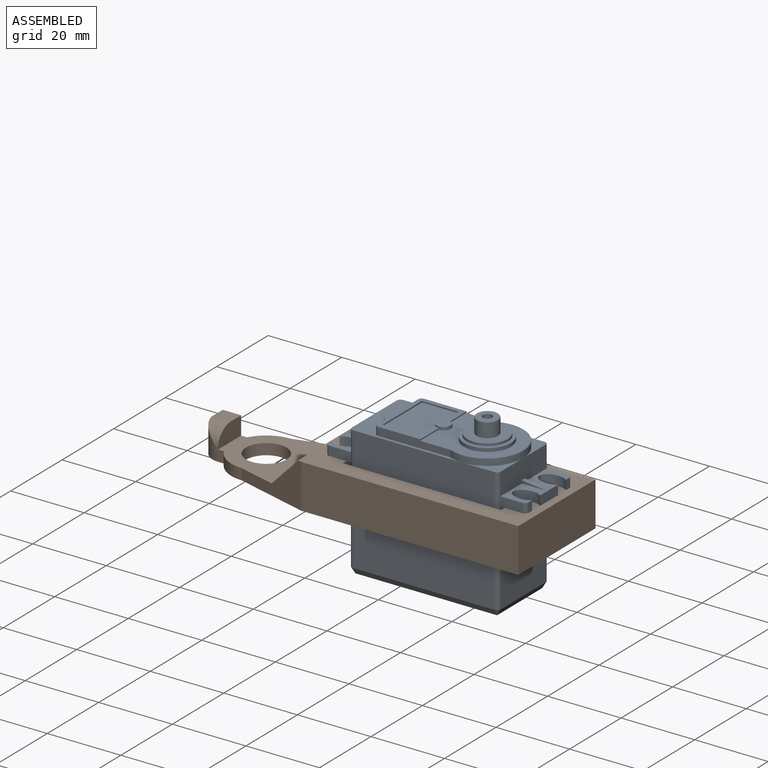
[diagram: assembled view]
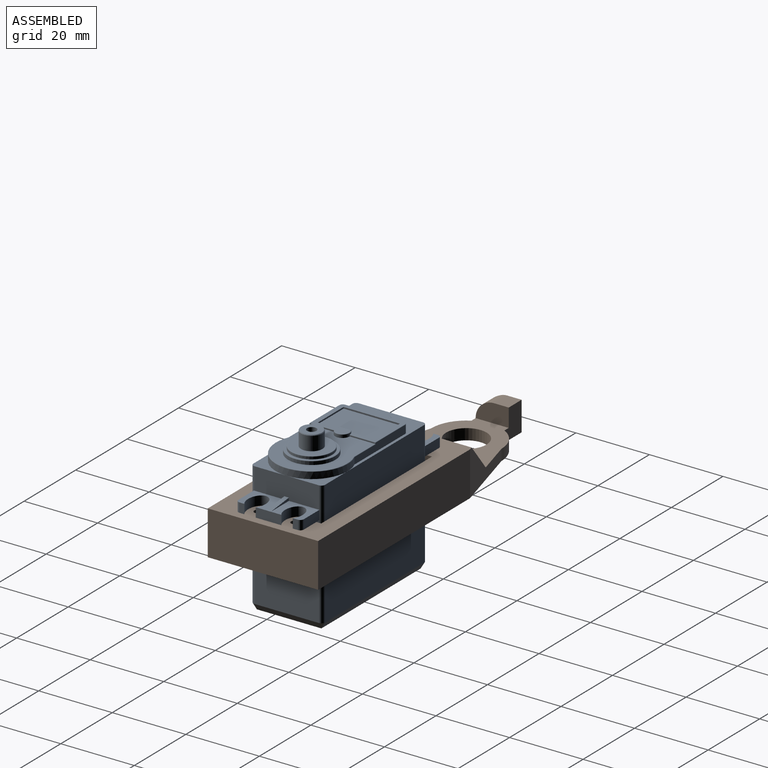
[diagram: assembled view, second angle]
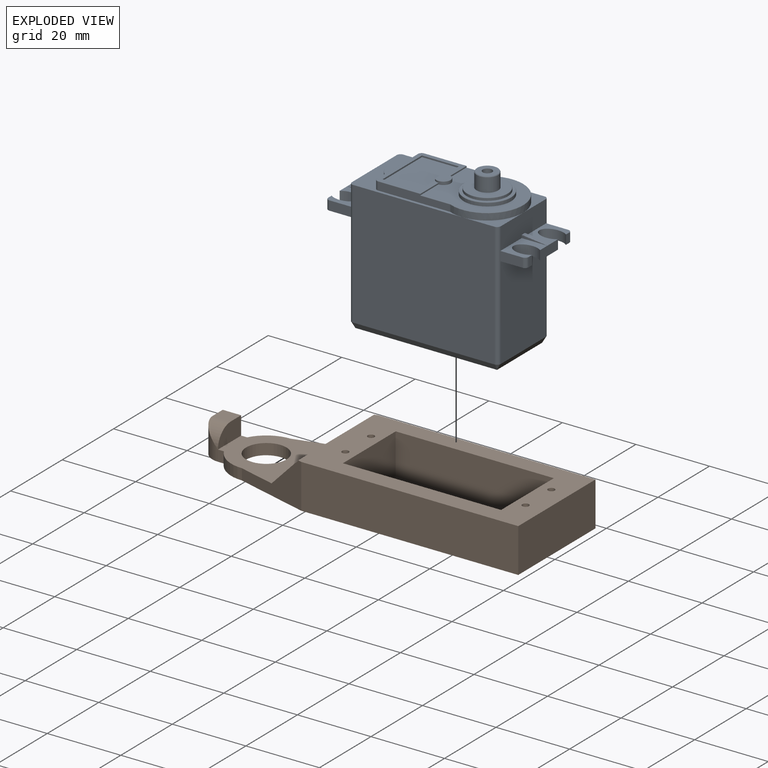
[diagram: exploded view]
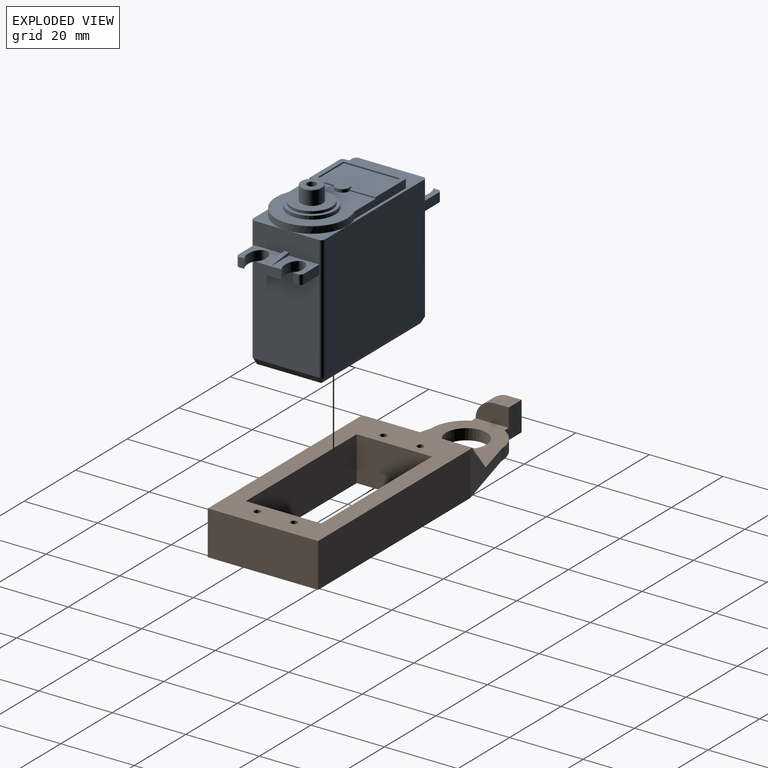
[diagram: exploded view, second angle]
ASSEMBLY  parts=2 mates=2
PART A: 94 faces, bbox 54.5x21.1x43.2 mm
  f0: plane 25.3x17.5mm, normal (1,0,0), area 442.8mm2, adj f13,f79,f80,f89
  f1: plane 25.3x17.5mm, normal (-1,0,0), area 442.8mm2, adj f5,f77,f78,f88
  f2: plane 17.75x12.3mm, normal (0,0,1), area 60.9mm2, adj f37,f38,f39,f40,f43,f66,f67,f68
  f3: plane 7x1.25mm, normal (0.11,0,0.99), area 8.8mm2, adj f6,f14,f56,f60
  f4: plane 8.28x7.01mm, normal (0,0,1), area 33.4mm2, adj f6,f7,f8,f9,f14,f56,f79,f82
  f5: plane 17.8x7.01mm, normal (0,0,-1), area 75.6mm2, adj f1,f18,f19,f20,f21,f22,f23,f24
  f6: plane 6.95x2.54mm, normal (1,0,0), area 17.6mm2, adj f3,f4,f7,f12,f13,f59
  f7: extruded ~6.15x4.74mm, area 38mm2, adj f4,f6,f8,f13
  f8: plane 2.54x1.32mm, normal (1,0,0), area 3.4mm2, adj f4,f7,f13,f82
  f9: plane 6.01x2.54mm, normal (0,1,0), area 15.3mm2, adj f4,f13,f79,f82
  f10: plane 6.01x2.54mm, normal (0,-1,0), area 15.3mm2, adj f13,f59,f80,f81
  f11: plane 2.54x1.32mm, normal (1,0,0), area 3.4mm2, adj f12,f13,f59,f81
  f12: extruded ~6.15x4.74mm, area 38mm2, adj f6,f11,f13,f59
  f13: plane 17.8x7.01mm, normal (0,0,-1), area 75.6mm2, adj f0,f6,f7,f8,f9,f10,f11,f12
  f14: plane 17.5x6mm, normal (1,0,0), area 104mm2, adj f3,f4,f16,f44,f56,f59,f60,f79
  f15: plane 38.5x33.84mm, normal (0,1,0), area 1302.8mm2, adj f16,f28,f78,f79,f85
  f16: plane 9.75x9.75mm, normal (0,0,1), area 20.2mm2, adj f14,f15,f17,f79
  f17: cylinder r=9.75mm len=19.5mm, axis (0,0,-1), area 69.2mm2, adj f16,f28,f31,f32,f44,f64
  f18: plane 6.95x2.54mm, normal (-1,0,0), area 17.6mm2, adj f5,f19,f24,f25,f54,f57
  f19: extruded ~6.15x4.74mm, area 38mm2, adj f5,f18,f20,f57
  f20: plane 2.54x1.32mm, normal (-1,0,0), area 3.4mm2, adj f5,f19,f57,f84
  f21: plane 6.01x2.54mm, normal (0,-1,0), area 15.3mm2, adj f5,f57,f77,f84
  f22: plane 6.01x2.54mm, normal (0,1,0), area 15.3mm2, adj f5,f25,f78,f83
  f23: plane 2.54x1.32mm, normal (-1,0,0), area 3.4mm2, adj f5,f24,f25,f83
  f24: extruded ~6.15x4.74mm, area 38mm2, adj f5,f18,f23,f25
  f25: plane 8.28x7.01mm, normal (0,0,1), area 33.4mm2, adj f18,f22,f23,f24,f26,f55,f78,f83
  f26: plane 17.5x6mm, normal (-1,0,0), area 104mm2, adj f25,f28,f54,f55,f57,f58,f77,f78
  f27: plane 38.5x33.84mm, normal (0,-1,0), area 1302.8mm2, adj f28,f44,f77,f80,f92
  f28: plane 30.75x19.5mm, normal (0,0,1), area 140.5mm2, adj f15,f17,f26,f27,f29,f31,f32,f35
  f29: cylinder r=5.6mm len=9.3mm, axis (0,0,-1), area 19.8mm2, adj f28,f35,f72
  f30: plane 9.06x2.38mm, normal (0,0,1), area 15.2mm2, adj f35,f72
  f31: plane 19.64x2.2mm, normal (0,-1,0), area 40mm2, adj f17,f28,f36,f63,f69,f73
  f32: plane 19.64x2.2mm, normal (0,1,0), area 40mm2, adj f17,f28,f34,f65,f67,f75
  f33: plane 21.6x19.3mm, normal (0,0,1), area 227.3mm2, adj f34,f36,f43,f45,f63,f64,f65
  f34: plane 7.03x0.4mm, normal (1,0,0), area 2.1mm2, adj f32,f33,f43,f65,f66
  f35: plane 15.95x2.2mm, normal (-1,0,0), area 17.4mm2, adj f28,f29,f30,f68,f72,f73,f75
  f36: plane 7.03x0.4mm, normal (1,0,0), area 2.1mm2, adj f31,f33,f43,f63,f70
  f37: plane 15.3x0.9mm, normal (-1,0,0), area 7.6mm2, adj f2,f38,f40,f41,f42,f43,f71
  f38: plane 10x0.4mm, normal (0,1,0), area 4mm2, adj f2,f37,f39,f41
  f39: plane 15.3x0.4mm, normal (1,0,0), area 6.1mm2, adj f2,f38,f40,f41
  f40: plane 10x0.4mm, normal (0,-1,0), area 4mm2, adj f2,f37,f39,f41
  f41: plane 15.3x10mm, normal (0,0,1), area 153mm2, adj f37,f38,f39,f40
  f42: plane 3.7x3.1mm, normal (0,0,1), area 9.6mm2, adj f37,f71
  f43: cylinder r=1.95mm len=3.9mm, axis (0,0,-1), area 6mm2, adj f2,f33,f34,f36,f37,f66,f70,f71
  f44: plane 9.75x9.75mm, normal (0,0,1), area 20.2mm2, adj f14,f17,f27,f80
  f45: cylinder r=6.41mm len=12.82mm, axis (0,0,-1), area 36.2mm2, adj f33,f62
  f46: plane 12.62x12.62mm, normal (0,0,1), area 28mm2, adj f47,f62
  f47: cylinder r=5.56mm len=11.12mm, axis (0,0,-1), area 22.7mm2, adj f46,f61
  f48: plane 10.92x10.92mm, normal (0,0,1), area 66.8mm2, adj f50,f61
  f49: cylinder r=1.27mm len=4mm, axis (0,0,-1), area 31.9mm2, adj f51,f53
  f50: cylinder r=2.93mm len=5.85mm, axis (0,0,-1), area 69.8mm2, adj f48,f93
  f51: plane 5.62x5.62mm, normal (0,0,1), area 19.7mm2, adj f49,f93
  f52: plane 38.54x17.54mm, normal (0,0,-1), area 675.8mm2, adj f85,f86,f87,f88,f89,f90,f91,f92
  f53: plane 2.54x2.54mm, normal (0,0,1), area 5.1mm2, adj f49
  f54: plane 7x1.25mm, normal (-0.11,0,0.99), area 8.8mm2, adj f18,f26,f55,f58
  f55: plane 7x0.8mm, normal (0,1,0), area 2.8mm2, adj f25,f26,f54
  f56: plane 7x0.8mm, normal (0,1,0), area 2.8mm2, adj f3,f4,f14
  f57: plane 8.28x7.01mm, normal (0,0,1), area 33.4mm2, adj f18,f19,f20,f21,f26,f58,f77,f84
  f58: plane 7x0.8mm, normal (0,-1,0), area 2.8mm2, adj f26,f54,f57
  f59: plane 8.28x7.01mm, normal (0,0,1), area 33.4mm2, adj f6,f10,f11,f12,f14,f60,f80,f81
  f60: plane 7x0.8mm, normal (0,-1,0), area 2.8mm2, adj f3,f14,f59
  f61: torus R=5.46mm, axis (0,0,1), area 5.5mm2, adj f47,f48
  f62: torus R=6.31mm, axis (0,0,1), area 6.3mm2, adj f45,f46
  f63: cylinder r=0.1mm len=8.16mm, axis (-1,0,0), area 1.3mm2, adj f31,f33,f36,f64
  f64: torus R=9.65mm, axis (0,0,1), area 6mm2, adj f17,f33,f63,f65
  f65: cylinder r=0.1mm len=8.16mm, axis (1,0,0), area 1.3mm2, adj f32,f33,f34,f64
  f66: cylinder r=0.1mm len=7.03mm, axis (0,-1,0), area 1.1mm2, adj f2,f34,f43,f67
  f67: cylinder r=0.1mm len=11.5mm, axis (1,0,0), area 1.8mm2, adj f2,f32,f66,f76
  f68: cylinder r=0.1mm len=15.95mm, axis (0,1,0), area 2.5mm2, adj f2,f35,f74,f76
  f69: cylinder r=0.1mm len=11.5mm, axis (-1,0,0), area 1.8mm2, adj f2,f31,f70,f74
  f70: cylinder r=0.1mm len=7.03mm, axis (0,-1,0), area 1.1mm2, adj f2,f36,f43,f69
  f71: torus R=1.85mm, axis (0,0,1), area 1.4mm2, adj f37,f42,f43
  f72: torus R=5.5mm, axis (0,0,1), area 1.7mm2, adj f29,f30,f35
  f73: cylinder r=1mm len=2.2mm, axis (0,0,-1), area 3.5mm2, adj f28,f31,f35,f74
  f74: torus R=0.9mm, axis (0,0,1), area 0.2mm2, adj f2,f68,f69,f73
  f75: cylinder r=1mm len=2.2mm, axis (0,0,1), area 3.5mm2, adj f28,f32,f35,f76
  f76: torus R=0.9mm, axis (0,0,1), area 0.2mm2, adj f2,f67,f68,f75
  f77: cylinder r=1mm len=33.84mm, axis (0,0,1), area 52.8mm2, adj f1,f5,f21,f26,f27,f28,f57,f90
  f78: cylinder r=1mm len=33.84mm, axis (0,0,-1), area 52.8mm2, adj f1,f5,f15,f22,f25,f26,f28,f86
  f79: cylinder r=1mm len=33.84mm, axis (0,0,1), area 52.8mm2, adj f0,f4,f9,f13,f14,f15,f16,f87
  f80: cylinder r=1mm len=33.84mm, axis (0,0,-1), area 52.8mm2, adj f0,f10,f13,f14,f27,f44,f59,f91
  f81: cylinder r=1mm len=2.54mm, axis (0,0,-1), area 4mm2, adj f10,f11,f13,f59
  f82: cylinder r=1mm len=2.54mm, axis (0,0,-1), area 4mm2, adj f4,f8,f9,f13
  f83: cylinder r=1mm len=2.54mm, axis (0,0,-1), area 4mm2, adj f5,f22,f23,f25
  f84: cylinder r=1mm len=2.54mm, axis (0,0,-1), area 4mm2, adj f5,f20,f21,f57
  f85: plane 38.5x1.7mm, normal (0,0.87,-0.5), area 75.6mm2, adj f15,f52,f86,f87
  f86: cone r=0.02mm half-angle=30deg, axis (0,0,1), area 1.6mm2, adj f52,f78,f85,f88
  f87: cone r=0.02mm half-angle=30deg, axis (0,0,1), area 1.6mm2, adj f52,f79,f85,f89
  f88: plane 17.5x1.7mm, normal (-0.87,0,-0.5), area 34.4mm2, adj f1,f52,f86,f90
  f89: plane 17.5x1.7mm, normal (0.87,0,-0.5), area 34.4mm2, adj f0,f52,f87,f91
  f90: cone r=0.02mm half-angle=30deg, axis (0,0,1), area 1.6mm2, adj f52,f77,f88,f92
  f91: cone r=0.02mm half-angle=30deg, axis (0,0,1), area 1.6mm2, adj f52,f80,f89,f92
  f92: plane 38.5x1.7mm, normal (0,-0.87,-0.5), area 75.6mm2, adj f27,f52,f90,f91
  f93: cone r=2.81mm half-angle=30deg, axis (0,0,-1), area 4.2mm2, adj f50,f51
PART B: 27 faces, bbox 94x12x30 mm
  f0: cylinder r=9.5mm len=8.37mm, axis (0,-1,0), area 30.7mm2, adj f1,f4,f7,f23
  f1: plane 24.5x20mm, normal (0,-1,0), area 272mm2, adj f0,f2,f3,f4,f6,f8,f22,f23
  f2: plane 3x1.63mm, normal (0,0,-1), area 4.9mm2, adj f1,f3,f7,f25
  f3: cylinder r=9.5mm len=8.37mm, axis (0,-1,0), area 30.7mm2, adj f1,f2,f7,f22
  f4: plane 8x6.63mm, normal (0,0,1), area 44.9mm2, adj f0,f1,f5,f7,f8,f9
  f5: plane 8x4mm, normal (-1,0,0), area 32mm2, adj f4,f7,f9,f25
  f6: cylinder r=5.5mm len=11mm, axis (0,-1,0), area 103.7mm2, adj f1,f7
  f7: plane 94x30mm, normal (0,1,0), area 1462.5mm2, adj f0,f2,f3,f4,f5,f6,f10,f11
  f8: plane 9x5mm, normal (1,0,0), area 39.6mm2, adj f1,f4,f9,f26
  f9: plane 5x4mm, normal (0,-1,0), area 20mm2, adj f4,f5,f8,f26
  f10: plane 30x12mm, normal (1,0,0), area 360mm2, adj f7,f11,f20,f21
  f11: plane 59x12mm, normal (0,0,-1), area 708mm2, adj f7,f10,f21,f22
  f12: plane 20.5x12mm, normal (1,0,0), area 246mm2, adj f7,f13,f19,f21
  f13: plane 43x12mm, normal (0,0,1), area 516mm2, adj f7,f12,f14,f21
  f14: plane 20.5x12mm, normal (-1,0,0), area 246mm2, adj f7,f13,f19,f21
  f15: cylinder r=0.9mm len=12mm, axis (0,1,0), area 67.9mm2, adj f7,f21
  f16: cylinder r=0.9mm len=12mm, axis (0,1,0), area 67.9mm2, adj f7,f21
  f17: cylinder r=0.9mm len=12mm, axis (0,1,0), area 67.9mm2, adj f7,f21
  f18: cylinder r=0.9mm len=12mm, axis (0,1,0), area 67.9mm2, adj f7,f21
  f19: plane 43x12mm, normal (0,0,-1), area 516mm2, adj f7,f12,f14,f21
  f20: plane 59x12mm, normal (0,0,1), area 708mm2, adj f7,f10,f21,f23
  f21: plane 60x30mm, normal (0,-1,0), area 908mm2, adj f10,f11,f12,f13,f14,f15,f16,f17
  f22: plane 20x12mm, normal (-0.27,0,-0.96), area 113.6mm2, adj f1,f3,f7,f11,f21,f24
  f23: plane 20x12mm, normal (-0.27,0,0.96), area 113.6mm2, adj f0,f1,f7,f20,f21,f24
  f24: plane 29.45x9mm, normal (-0.71,-0.71,0), area 343.3mm2, adj f1,f21,f22,f23
  f25: cylinder r=5mm len=8mm, axis (0,-1,0), area 48.6mm2, adj f2,f5,f7,f26
  f26: cylinder r=5mm len=5mm, axis (1,0,0), area 25mm2, adj f8,f9,f25
PLACE A t=(28.78,16.15,41.97)mm
PLACE B rot(axis=(-1,0,0),90deg) t=(-0.57,25.88,32.97)mm
MATE cylindrical B.f18 <-> A.f57  axis (0,0,1) through (24.43,20.88,41.97)mm
MATE planar B.f17 <-> A.f13  axis (0,0,1) through (73.43,30.88,41.97)mm
